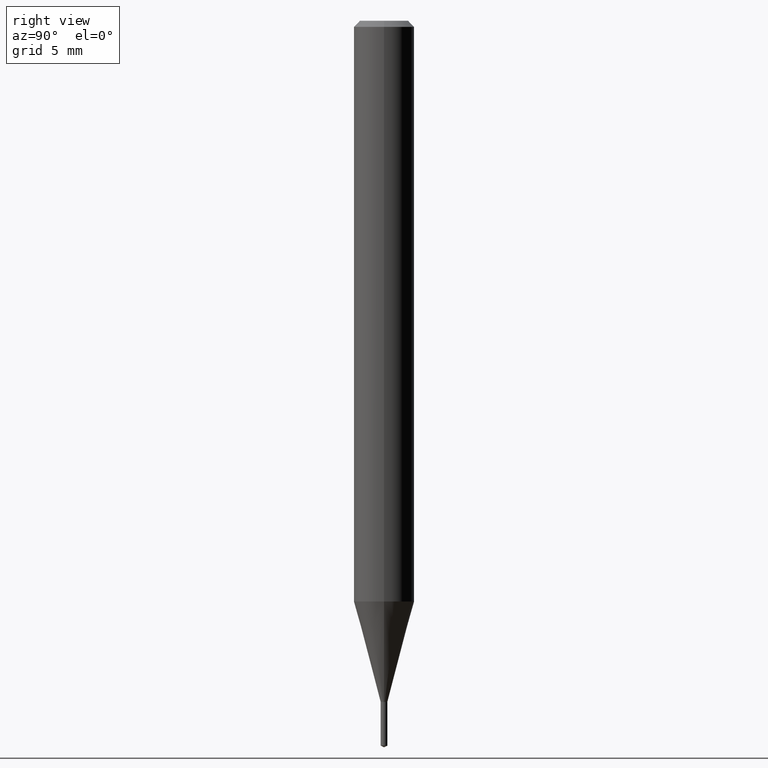
[diagram: clean part render]
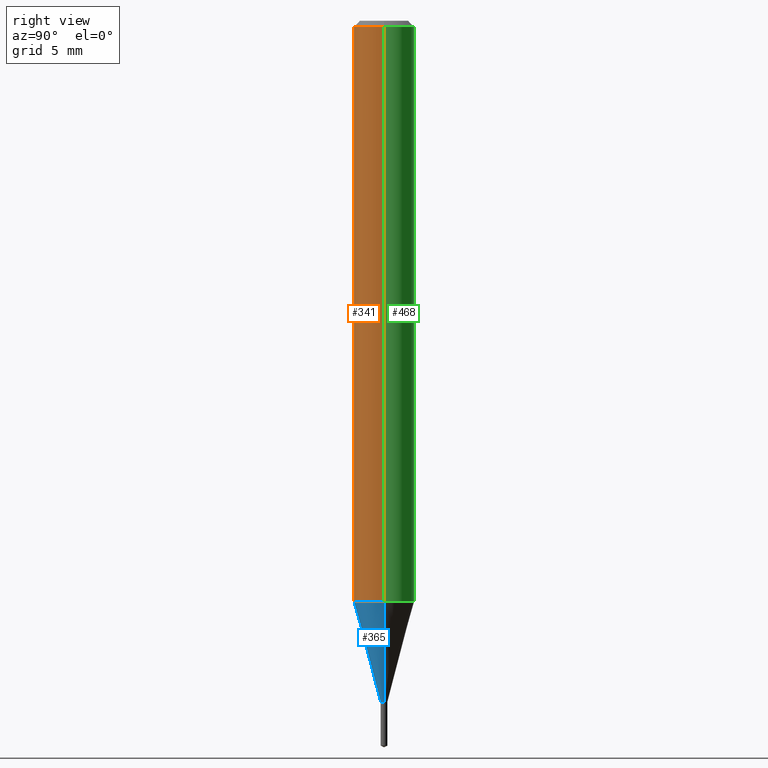
[diagram: same view with three faces highlighted in distinct colors, each labeled with its STEP entity id]
A machine part, right view with three faces highlighted in distinct colors.
Their STEP definitions:

[orange] entity #341 — the highlighted cylindrical surface (edge-blend (fillet) strip) has radius 1.5875 mm, axis along (-0, 0, 1).
#7 = CARTESIAN_POINT ( 'NONE',  ( 0.06250000000000013878, -4.623063370858769770E-15, -1.199097975099176372 ) ) ;
#8 = VERTEX_POINT ( 'NONE', #294 ) ;
#85 = LINE ( 'NONE', #327, #484 ) ;
#92 = AXIS2_PLACEMENT_3D ( 'NONE', #244, #163, #463 ) ;
#104 = DIRECTION ( 'NONE',  ( 1.000000000000000000, -6.982962677686270655E-15, 0.000000000000000000 ) ) ;
#121 = ORIENTED_EDGE ( 'NONE', *, *, #147, .T. ) ;
#131 = DIRECTION ( 'NONE',  ( -2.445468806185136597E-29, 3.491481338843145583E-15, 1.000000000000000000 ) ) ;
#147 = EDGE_CURVE ( 'NONE', #350, #243, #238, .T. ) ;
#163 = DIRECTION ( 'NONE',  ( -2.445468806185136597E-29, 3.491481338843145583E-15, 1.000000000000000000 ) ) ;
#167 = VECTOR ( 'NONE', #278, 39.37007874015748143 ) ;
#176 = CARTESIAN_POINT ( 'NONE',  ( -0.06250000000000000000, -1.671046650269394440E-15, -0.01250000000000008570 ) ) ;
#186 = AXIS2_PLACEMENT_3D ( 'NONE', #228, #331, #189 ) ;
#189 = DIRECTION ( 'NONE',  ( 1.000000000000000000, -6.982962677686266711E-15, 4.876176775795935793E-29 ) ) ;
#200 = ORIENTED_EDGE ( 'NONE', *, *, #316, .F. ) ;
#207 = DIRECTION ( 'NONE',  ( -2.445468806185136877E-29, 3.491481338843145188E-15, 1.000000000000000000 ) ) ;
#209 = ORIENTED_EDGE ( 'NONE', *, *, #213, .F. ) ;
#213 = EDGE_CURVE ( 'NONE', #350, #318, #367, .T. ) ;
#228 = CARTESIAN_POINT ( 'NONE',  ( 0.000000000000000000, 0.000000000000000000, 0.000000000000000000 ) ) ;
#238 = CIRCLE ( 'NONE', #370, 0.06250000000000013878 ) ;
#243 = VERTEX_POINT ( 'NONE', #7 ) ;
#244 = CARTESIAN_POINT ( 'NONE',  ( 3.056836007731441853E-31, -4.364351673553962300E-17, -0.01250000000000008570 ) ) ;
#246 = EDGE_CURVE ( 'NONE', #243, #8, #85, .T. ) ;
#264 = CARTESIAN_POINT ( 'NONE',  ( -0.06250000000000013878, -3.742538993653314695E-15, -1.199097975099176372 ) ) ;
#278 = DIRECTION ( 'NONE',  ( -2.445468806185136877E-29, 3.491481338843145188E-15, 1.000000000000000000 ) ) ;
#294 = CARTESIAN_POINT ( 'NONE',  ( 0.06250000000000000000, -4.800786840909313294E-16, -0.01250000000000008570 ) ) ;
#299 = CYLINDRICAL_SURFACE ( 'NONE', #186, 0.06250000000000006939 ) ;
#316 = EDGE_CURVE ( 'NONE', #318, #8, #361, .T. ) ;
#318 = VERTEX_POINT ( 'NONE', #176 ) ;
#321 = FACE_OUTER_BOUND ( 'NONE', #485, .T. ) ;
#327 = CARTESIAN_POINT ( 'NONE',  ( 0.06250000000000006939, -4.364351673553921624E-16, 3.047610484872463374E-30 ) ) ;
#331 = DIRECTION ( 'NONE',  ( -2.445468806185136597E-29, 3.491481338843145583E-15, 1.000000000000000000 ) ) ;
#341 = ADVANCED_FACE ( 'NONE', ( #321 ), #299, .T. ) ;
#350 = VERTEX_POINT ( 'NONE', #264 ) ;
#361 = CIRCLE ( 'NONE', #92, 0.06250000000000000000 ) ;
#367 = LINE ( 'NONE', #369, #167 ) ;
#369 = CARTESIAN_POINT ( 'NONE',  ( -0.06250000000000006939, 4.440892098500631092E-16, -3.074334431409319267E-30 ) ) ;
#370 = AXIS2_PLACEMENT_3D ( 'NONE', #399, #131, #104 ) ;
#393 = ORIENTED_EDGE ( 'NONE', *, *, #246, .T. ) ;
#399 = CARTESIAN_POINT ( 'NONE',  ( 2.932356693664797895E-29, -4.186628203503377311E-15, -1.199097975099176372 ) ) ;
#463 = DIRECTION ( 'NONE',  ( 1.000000000000000000, -6.982962677686266711E-15, 0.000000000000000000 ) ) ;
#484 = VECTOR ( 'NONE', #207, 39.37007874015748143 ) ;
#485 = EDGE_LOOP ( 'NONE', ( #209, #121, #393, #200 ) ) ;

[blue] entity #365 — the highlighted conical surface has half-angle 15 deg.
#7 = CARTESIAN_POINT ( 'NONE',  ( 0.06250000000000013878, -4.623063370858769770E-15, -1.199097975099176372 ) ) ;
#10 = AXIS2_PLACEMENT_3D ( 'NONE', #247, #170, #292 ) ;
#15 = CARTESIAN_POINT ( 'NONE',  ( 0.006899999999999999883, -4.959300093692804553E-15, -1.406600000000000295 ) ) ;
#33 = VERTEX_POINT ( 'NONE', #15 ) ;
#38 = AXIS2_PLACEMENT_3D ( 'NONE', #142, #343, #441 ) ;
#104 = DIRECTION ( 'NONE',  ( 1.000000000000000000, -6.982962677686270655E-15, 0.000000000000000000 ) ) ;
#125 = LINE ( 'NONE', #208, #193 ) ;
#131 = DIRECTION ( 'NONE',  ( -2.445468806185136597E-29, 3.491481338843145583E-15, 1.000000000000000000 ) ) ;
#132 = VECTOR ( 'NONE', #396, 39.37007874015748854 ) ;
#142 = CARTESIAN_POINT ( 'NONE',  ( 3.439796422780014085E-29, -4.911117651216769477E-15, -1.406600000000000295 ) ) ;
#146 = CARTESIAN_POINT ( 'NONE',  ( -0.006899999999999999883, -4.631477860018732749E-15, -1.406600000000000295 ) ) ;
#147 = EDGE_CURVE ( 'NONE', #350, #243, #238, .T. ) ;
#170 = DIRECTION ( 'NONE',  ( -2.445468806185136597E-29, 3.491481338843145583E-15, 1.000000000000000000 ) ) ;
#190 = ORIENTED_EDGE ( 'NONE', *, *, #476, .F. ) ;
#193 = VECTOR ( 'NONE', #387, 39.37007874015748854 ) ;
#199 = CONICAL_SURFACE ( 'NONE', #38, 0.006899999999999999883, 0.2617993877991570684 ) ;
#208 = CARTESIAN_POINT ( 'NONE',  ( -0.006899999999999999883, -4.862090202449323231E-15, -1.406600000000000295 ) ) ;
#216 = EDGE_CURVE ( 'NONE', #416, #33, #317, .T. ) ;
#222 = CARTESIAN_POINT ( 'NONE',  ( 0.006899999999999999883, -4.959300093692804553E-15, -1.406600000000000295 ) ) ;
#238 = CIRCLE ( 'NONE', #370, 0.06250000000000013878 ) ;
#243 = VERTEX_POINT ( 'NONE', #7 ) ;
#247 = CARTESIAN_POINT ( 'NONE',  ( 3.439796422780014085E-29, -4.911117651216769477E-15, -1.406600000000000295 ) ) ;
#256 = LINE ( 'NONE', #222, #132 ) ;
#264 = CARTESIAN_POINT ( 'NONE',  ( -0.06250000000000013878, -3.742538993653314695E-15, -1.199097975099176372 ) ) ;
#292 = DIRECTION ( 'NONE',  ( 1.000000000000000000, -6.982962677686234367E-15, 0.000000000000000000 ) ) ;
#295 = FACE_OUTER_BOUND ( 'NONE', #422, .T. ) ;
#306 = EDGE_CURVE ( 'NONE', #33, #243, #256, .T. ) ;
#317 = CIRCLE ( 'NONE', #10, 0.006899999999999999883 ) ;
#343 = DIRECTION ( 'NONE',  ( -2.445468806185136597E-29, 3.491481338843145583E-15, 1.000000000000000000 ) ) ;
#350 = VERTEX_POINT ( 'NONE', #264 ) ;
#358 = ORIENTED_EDGE ( 'NONE', *, *, #306, .T. ) ;
#365 = ADVANCED_FACE ( 'NONE', ( #295 ), #199, .T. ) ;
#370 = AXIS2_PLACEMENT_3D ( 'NONE', #399, #131, #104 ) ;
#386 = ORIENTED_EDGE ( 'NONE', *, *, #216, .T. ) ;
#387 = DIRECTION ( 'NONE',  ( -0.2588190451025281225, 5.211531920934590485E-15, 0.9659258262890662028 ) ) ;
#396 = DIRECTION ( 'NONE',  ( 0.2588190451025281225, 1.565188264969568128E-15, 0.9659258262890662028 ) ) ;
#399 = CARTESIAN_POINT ( 'NONE',  ( 2.932356693664797895E-29, -4.186628203503377311E-15, -1.199097975099176372 ) ) ;
#416 = VERTEX_POINT ( 'NONE', #146 ) ;
#422 = EDGE_LOOP ( 'NONE', ( #190, #386, #358, #490 ) ) ;
#441 = DIRECTION ( 'NONE',  ( 1.000000000000000000, -6.982962677686234367E-15, 0.000000000000000000 ) ) ;
#476 = EDGE_CURVE ( 'NONE', #416, #350, #125, .T. ) ;
#490 = ORIENTED_EDGE ( 'NONE', *, *, #147, .F. ) ;

[green] entity #468 — the highlighted cylindrical surface (edge-blend (fillet) strip) has radius 1.5875 mm, axis along (-0, 0, 1).
#2 = CYLINDRICAL_SURFACE ( 'NONE', #39, 0.06250000000000006939 ) ;
#7 = CARTESIAN_POINT ( 'NONE',  ( 0.06250000000000013878, -4.623063370858769770E-15, -1.199097975099176372 ) ) ;
#8 = VERTEX_POINT ( 'NONE', #294 ) ;
#22 = DIRECTION ( 'NONE',  ( 1.000000000000000000, -6.982962677686270655E-15, 0.000000000000000000 ) ) ;
#30 = EDGE_LOOP ( 'NONE', ( #126, #311, #265, #196 ) ) ;
#36 = DIRECTION ( 'NONE',  ( 1.000000000000000000, -6.982962677686266711E-15, 4.876176775795935793E-29 ) ) ;
#39 = AXIS2_PLACEMENT_3D ( 'NONE', #153, #233, #36 ) ;
#53 = DIRECTION ( 'NONE',  ( 1.000000000000000000, -6.982962677686266711E-15, 0.000000000000000000 ) ) ;
#74 = EDGE_CURVE ( 'NONE', #243, #350, #227, .T. ) ;
#85 = LINE ( 'NONE', #327, #484 ) ;
#101 = CIRCLE ( 'NONE', #148, 0.06250000000000000000 ) ;
#126 = ORIENTED_EDGE ( 'NONE', *, *, #74, .T. ) ;
#148 = AXIS2_PLACEMENT_3D ( 'NONE', #291, #366, #53 ) ;
#152 = EDGE_CURVE ( 'NONE', #8, #318, #101, .T. ) ;
#153 = CARTESIAN_POINT ( 'NONE',  ( 0.000000000000000000, 0.000000000000000000, 0.000000000000000000 ) ) ;
#155 = FACE_OUTER_BOUND ( 'NONE', #30, .T. ) ;
#167 = VECTOR ( 'NONE', #278, 39.37007874015748143 ) ;
#176 = CARTESIAN_POINT ( 'NONE',  ( -0.06250000000000000000, -1.671046650269394440E-15, -0.01250000000000008570 ) ) ;
#196 = ORIENTED_EDGE ( 'NONE', *, *, #246, .F. ) ;
#207 = DIRECTION ( 'NONE',  ( -2.445468806185136877E-29, 3.491481338843145188E-15, 1.000000000000000000 ) ) ;
#213 = EDGE_CURVE ( 'NONE', #350, #318, #367, .T. ) ;
#227 = CIRCLE ( 'NONE', #338, 0.06250000000000013878 ) ;
#233 = DIRECTION ( 'NONE',  ( -2.445468806185136597E-29, 3.491481338843145583E-15, 1.000000000000000000 ) ) ;
#243 = VERTEX_POINT ( 'NONE', #7 ) ;
#246 = EDGE_CURVE ( 'NONE', #243, #8, #85, .T. ) ;
#264 = CARTESIAN_POINT ( 'NONE',  ( -0.06250000000000013878, -3.742538993653314695E-15, -1.199097975099176372 ) ) ;
#265 = ORIENTED_EDGE ( 'NONE', *, *, #152, .F. ) ;
#278 = DIRECTION ( 'NONE',  ( -2.445468806185136877E-29, 3.491481338843145188E-15, 1.000000000000000000 ) ) ;
#291 = CARTESIAN_POINT ( 'NONE',  ( 3.056836007731441853E-31, -4.364351673553962300E-17, -0.01250000000000008570 ) ) ;
#294 = CARTESIAN_POINT ( 'NONE',  ( 0.06250000000000000000, -4.800786840909313294E-16, -0.01250000000000008570 ) ) ;
#311 = ORIENTED_EDGE ( 'NONE', *, *, #213, .T. ) ;
#318 = VERTEX_POINT ( 'NONE', #176 ) ;
#327 = CARTESIAN_POINT ( 'NONE',  ( 0.06250000000000006939, -4.364351673553921624E-16, 3.047610484872463374E-30 ) ) ;
#333 = CARTESIAN_POINT ( 'NONE',  ( 2.932356693664797895E-29, -4.186628203503377311E-15, -1.199097975099176372 ) ) ;
#338 = AXIS2_PLACEMENT_3D ( 'NONE', #333, #467, #22 ) ;
#350 = VERTEX_POINT ( 'NONE', #264 ) ;
#366 = DIRECTION ( 'NONE',  ( -2.445468806185136597E-29, 3.491481338843145583E-15, 1.000000000000000000 ) ) ;
#367 = LINE ( 'NONE', #369, #167 ) ;
#369 = CARTESIAN_POINT ( 'NONE',  ( -0.06250000000000006939, 4.440892098500631092E-16, -3.074334431409319267E-30 ) ) ;
#467 = DIRECTION ( 'NONE',  ( -2.445468806185136597E-29, 3.491481338843145583E-15, 1.000000000000000000 ) ) ;
#468 = ADVANCED_FACE ( 'NONE', ( #155 ), #2, .T. ) ;
#484 = VECTOR ( 'NONE', #207, 39.37007874015748143 ) ;